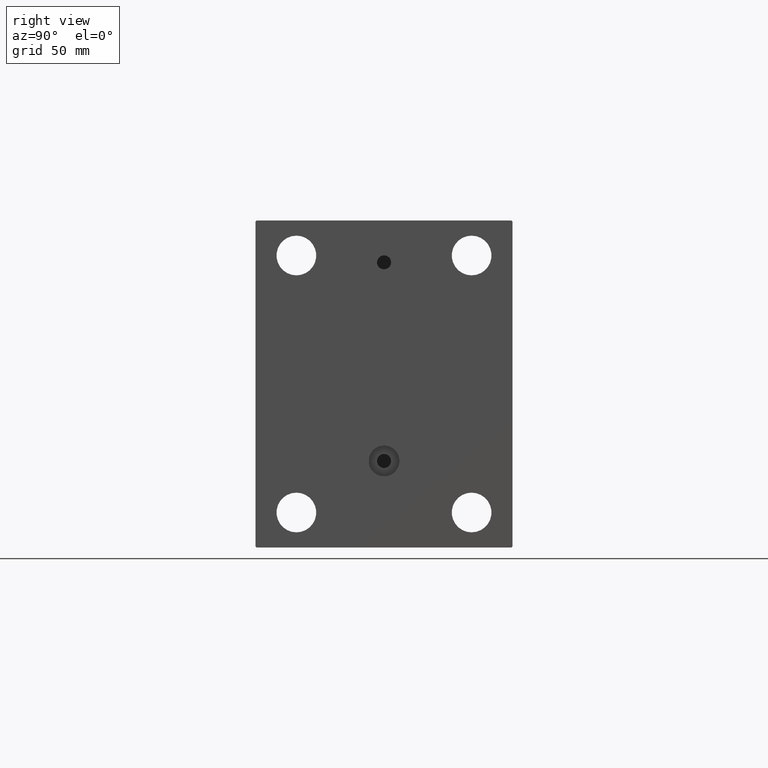
[diagram: clean part render]
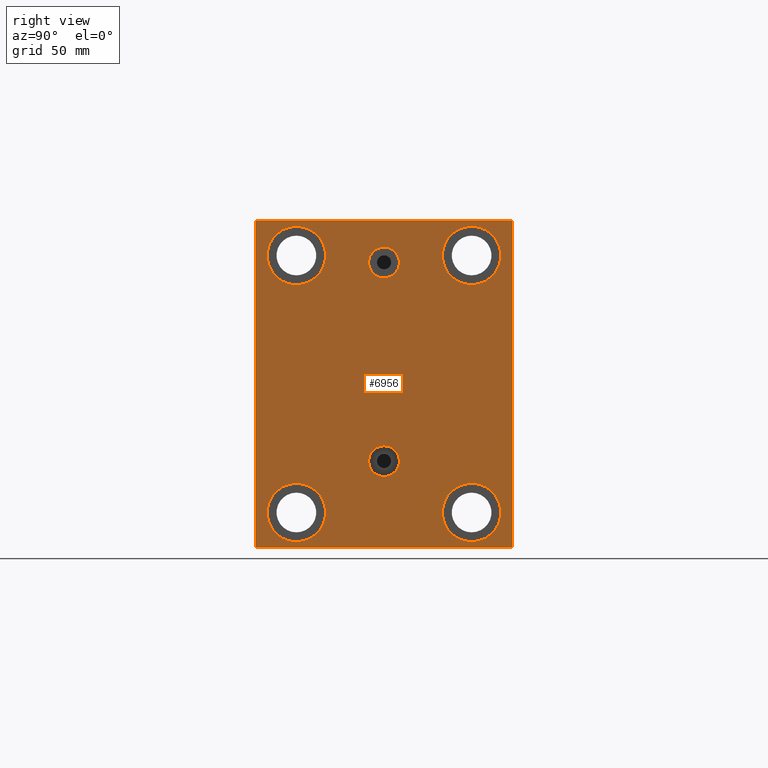
[diagram: same view with one face highlighted and labeled with its STEP entity id]
A machine part, right view. The second image highlights one B-rep face of the part: STEP entity #6956.
In plain terms, the highlighted planar face has unit normal (1, 0, 0).
Its self-contained STEP definition (entity closure, byte-faithful):
#545 = AXIS2_PLACEMENT_3D ( 'NONE', #3062, #14126, #35136 ) ;
#550 = EDGE_CURVE ( 'NONE', #5979, #14160, #40256, .T. ) ;
#575 = DIRECTION ( 'NONE',  ( 1.000000000000000000, 0.000000000000000000, -0.000000000000000000 ) ) ;
#583 = CIRCLE ( 'NONE', #545, 12.49999999999999645 ) ;
#736 = VERTEX_POINT ( 'NONE', #2929 ) ;
#903 = EDGE_CURVE ( 'NONE', #9303, #41866, #19307, .T. ) ;
#1451 = CIRCLE ( 'NONE', #33844, 12.49999999999999645 ) ;
#1667 = VECTOR ( 'NONE', #37918, 1000.000000000000000 ) ;
#2062 = EDGE_CURVE ( 'NONE', #40483, #42047, #39945, .T. ) ;
#2284 = ORIENTED_EDGE ( 'NONE', *, *, #44559, .F. ) ;
#2319 = CARTESIAN_POINT ( 'NONE',  ( 133.0000000000000000, -37.50000000000002132, -67.49999999999998579 ) ) ;
#2740 = AXIS2_PLACEMENT_3D ( 'NONE', #25566, #575, #18271 ) ;
#2771 = CARTESIAN_POINT ( 'NONE',  ( 133.0000000000000000, 54.99999999999999289, 69.49999999999997158 ) ) ;
#2916 = FACE_BOUND ( 'NONE', #40536, .T. ) ;
#2929 = CARTESIAN_POINT ( 'NONE',  ( 133.0000000000000000, -37.50000000000000711, 67.50000000000000000 ) ) ;
#3047 = VERTEX_POINT ( 'NONE', #43265 ) ;
#3062 = CARTESIAN_POINT ( 'NONE',  ( 133.0000000000000000, -37.50000000000002132, -54.99999999999999289 ) ) ;
#3151 = VERTEX_POINT ( 'NONE', #19167 ) ;
#3536 = DIRECTION ( 'NONE',  ( -1.000000000000000000, -0.000000000000000000, -0.000000000000000000 ) ) ;
#4415 = DIRECTION ( 'NONE',  ( 1.000000000000000000, 0.000000000000000000, -0.000000000000000000 ) ) ;
#4560 = VERTEX_POINT ( 'NONE', #42649 ) ;
#4620 = EDGE_LOOP ( 'NONE', ( #28916, #35952 ) ) ;
#5144 = EDGE_CURVE ( 'NONE', #34589, #18712, #583, .T. ) ;
#5153 = AXIS2_PLACEMENT_3D ( 'NONE', #10791, #29429, #25174 ) ;
#5413 = EDGE_CURVE ( 'NONE', #3151, #42880, #14136, .T. ) ;
#5695 = VERTEX_POINT ( 'NONE', #35022 ) ;
#5804 = ORIENTED_EDGE ( 'NONE', *, *, #37674, .T. ) ;
#5882 = ORIENTED_EDGE ( 'NONE', *, *, #14464, .T. ) ;
#5979 = VERTEX_POINT ( 'NONE', #34266 ) ;
#6048 = VERTEX_POINT ( 'NONE', #34962 ) ;
#6229 = CARTESIAN_POINT ( 'NONE',  ( 133.0000000000000000, -37.50000000000000711, 55.00000000000000711 ) ) ;
#6521 = EDGE_LOOP ( 'NONE', ( #34895, #29741, #26223, #38140, #37134, #30417, #29985, #24994 ) ) ;
#6649 = EDGE_CURVE ( 'NONE', #18712, #34589, #7400, .T. ) ;
#6956 = ADVANCED_FACE ( 'NONE', ( #2916, #34527, #20388, #45654, #20617, #31456, #30995 ), #9754, .T. ) ;
#7114 = CARTESIAN_POINT ( 'NONE',  ( 133.0000000000000000, -8.775864102628257178E-15, 52.00000000000000711 ) ) ;
#7400 = CIRCLE ( 'NONE', #5153, 12.49999999999999645 ) ;
#8091 = AXIS2_PLACEMENT_3D ( 'NONE', #25272, #28595, #35450 ) ;
#8829 = DIRECTION ( 'NONE',  ( 0.000000000000000000, 0.000000000000000000, 1.000000000000000000 ) ) ;
#9303 = VERTEX_POINT ( 'NONE', #17352 ) ;
#9754 = PLANE ( 'NONE',  #14172 ) ;
#10016 = LINE ( 'NONE', #18727, #29580 ) ;
#10759 = LINE ( 'NONE', #46203, #16747 ) ;
#10791 = CARTESIAN_POINT ( 'NONE',  ( 133.0000000000000000, -37.50000000000002132, -54.99999999999999289 ) ) ;
#11332 = ORIENTED_EDGE ( 'NONE', *, *, #5144, .T. ) ;
#11952 = CARTESIAN_POINT ( 'NONE',  ( 133.0000000000000000, -54.50000000000000711, -70.00000000000002842 ) ) ;
#11964 = ORIENTED_EDGE ( 'NONE', *, *, #45645, .T. ) ;
#12132 = CARTESIAN_POINT ( 'NONE',  ( 133.0000000000000000, 37.50000000000000711, 55.00000000000000711 ) ) ;
#12643 = CIRCLE ( 'NONE', #30718, 12.49999999999999645 ) ;
#13078 = ORIENTED_EDGE ( 'NONE', *, *, #17679, .F. ) ;
#13563 = VERTEX_POINT ( 'NONE', #19545 ) ;
#13673 = DIRECTION ( 'NONE',  ( 0.000000000000000000, -1.000000000000000000, -1.261617073437677999E-16 ) ) ;
#14126 = DIRECTION ( 'NONE',  ( -1.000000000000000000, -0.000000000000000000, -0.000000000000000000 ) ) ;
#14136 = CIRCLE ( 'NONE', #41320, 12.49999999999999645 ) ;
#14155 = CARTESIAN_POINT ( 'NONE',  ( 133.0000000000000000, -37.50000000000000711, 55.00000000000000711 ) ) ;
#14160 = VERTEX_POINT ( 'NONE', #32044 ) ;
#14161 = DIRECTION ( 'NONE',  ( -1.000000000000000000, -0.000000000000000000, -0.000000000000000000 ) ) ;
#14172 = AXIS2_PLACEMENT_3D ( 'NONE', #46364, #24144, #41646 ) ;
#14464 = EDGE_CURVE ( 'NONE', #30354, #736, #43556, .T. ) ;
#14578 = AXIS2_PLACEMENT_3D ( 'NONE', #18637, #14161, #15099 ) ;
#14693 = EDGE_CURVE ( 'NONE', #38950, #6048, #12643, .T. ) ;
#15099 = DIRECTION ( 'NONE',  ( 0.000000000000000000, 0.000000000000000000, 1.000000000000000000 ) ) ;
#15654 = DIRECTION ( 'NONE',  ( 0.000000000000000000, -0.7071067811865474617, -0.7071067811865474617 ) ) ;
#16225 = CARTESIAN_POINT ( 'NONE',  ( 133.0000000000000000, -55.00000000000000711, -70.00000000000002842 ) ) ;
#16657 = CARTESIAN_POINT ( 'NONE',  ( 133.0000000000000000, -62.25000000000078160, -62.24999999999904787 ) ) ;
#16747 = VECTOR ( 'NONE', #35550, 1000.000000000000000 ) ;
#16752 = EDGE_LOOP ( 'NONE', ( #11332, #42637 ) ) ;
#17087 = EDGE_CURVE ( 'NONE', #19870, #4560, #40884, .T. ) ;
#17352 = CARTESIAN_POINT ( 'NONE',  ( 133.0000000000000000, 4.041334437186266200E-15, -39.58000000000000540 ) ) ;
#17398 = DIRECTION ( 'NONE',  ( -1.000000000000000000, -0.000000000000000000, -0.000000000000000000 ) ) ;
#17679 = EDGE_CURVE ( 'NONE', #41866, #9303, #45922, .T. ) ;
#17934 = DIRECTION ( 'NONE',  ( 0.000000000000000000, 0.000000000000000000, 1.000000000000000000 ) ) ;
#18271 = DIRECTION ( 'NONE',  ( 0.000000000000000000, 0.000000000000000000, 1.000000000000000000 ) ) ;
#18637 = CARTESIAN_POINT ( 'NONE',  ( 133.0000000000000000, 37.49999999999997868, -54.99999999999999289 ) ) ;
#18712 = VERTEX_POINT ( 'NONE', #19516 ) ;
#18727 = CARTESIAN_POINT ( 'NONE',  ( 133.0000000000000000, -62.25000000000000711, 62.25000000000000711 ) ) ;
#19167 = CARTESIAN_POINT ( 'NONE',  ( 133.0000000000000000, 37.50000000000000711, 67.50000000000000000 ) ) ;
#19307 = CIRCLE ( 'NONE', #2740, 6.580000000000002736 ) ;
#19516 = CARTESIAN_POINT ( 'NONE',  ( 133.0000000000000000, -37.50000000000002132, -42.49999999999999289 ) ) ;
#19545 = CARTESIAN_POINT ( 'NONE',  ( 133.0000000000000000, -7.970046508789298136E-15, 58.58000000000000540 ) ) ;
#19870 = VERTEX_POINT ( 'NONE', #2771 ) ;
#20252 = EDGE_LOOP ( 'NONE', ( #5804, #40223 ) ) ;
#20388 = FACE_BOUND ( 'NONE', #20252, .T. ) ;
#20566 = DIRECTION ( 'NONE',  ( 0.000000000000000000, 0.000000000000000000, 1.000000000000000000 ) ) ;
#20584 = AXIS2_PLACEMENT_3D ( 'NONE', #7114, #21513, #39687 ) ;
#20617 = FACE_BOUND ( 'NONE', #4620, .T. ) ;
#21176 = CARTESIAN_POINT ( 'NONE',  ( 133.0000000000000000, 37.50000000000000711, 55.00000000000000711 ) ) ;
#21268 = DIRECTION ( 'NONE',  ( -1.000000000000000000, -0.000000000000000000, -0.000000000000000000 ) ) ;
#21513 = DIRECTION ( 'NONE',  ( 1.000000000000000000, 0.000000000000000000, 0.000000000000000000 ) ) ;
#21764 = DIRECTION ( 'NONE',  ( 0.000000000000000000, 0.000000000000000000, -1.000000000000000000 ) ) ;
#23106 = VECTOR ( 'NONE', #21764, 1000.000000000000000 ) ;
#23576 = EDGE_LOOP ( 'NONE', ( #28354, #13078 ) ) ;
#23862 = EDGE_CURVE ( 'NONE', #4560, #3047, #34437, .T. ) ;
#23887 = CARTESIAN_POINT ( 'NONE',  ( 133.0000000000000000, -55.00000000000000711, 69.50000000000001421 ) ) ;
#24087 = VECTOR ( 'NONE', #13673, 1000.000000000000000 ) ;
#24144 = DIRECTION ( 'NONE',  ( 1.000000000000000000, 0.000000000000000000, 0.000000000000000000 ) ) ;
#24994 = ORIENTED_EDGE ( 'NONE', *, *, #17087, .T. ) ;
#25174 = DIRECTION ( 'NONE',  ( 0.000000000000000000, 0.000000000000000000, 1.000000000000000000 ) ) ;
#25272 = CARTESIAN_POINT ( 'NONE',  ( 133.0000000000000000, -8.775864102628257178E-15, 52.00000000000000711 ) ) ;
#25566 = CARTESIAN_POINT ( 'NONE',  ( 133.0000000000000000, 4.041334437186266200E-15, -33.00000000000000000 ) ) ;
#26063 = VECTOR ( 'NONE', #26065, 1000.000000000000000 ) ;
#26065 = DIRECTION ( 'NONE',  ( -0.000000000000000000, 0.7071067811865279218, 0.7071067811865671127 ) ) ;
#26223 = ORIENTED_EDGE ( 'NONE', *, *, #2062, .T. ) ;
#26343 = CARTESIAN_POINT ( 'NONE',  ( 133.0000000000000000, 4.041334437186266200E-15, -33.00000000000000000 ) ) ;
#26915 = DIRECTION ( 'NONE',  ( -0.000000000000000000, -0.7071067811865474617, 0.7071067811865474617 ) ) ;
#27037 = CIRCLE ( 'NONE', #44422, 12.49999999999999645 ) ;
#27405 = CIRCLE ( 'NONE', #14578, 12.49999999999999645 ) ;
#28354 = ORIENTED_EDGE ( 'NONE', *, *, #903, .F. ) ;
#28595 = DIRECTION ( 'NONE',  ( 1.000000000000000000, 0.000000000000000000, 0.000000000000000000 ) ) ;
#28916 = ORIENTED_EDGE ( 'NONE', *, *, #45290, .T. ) ;
#28950 = EDGE_CURVE ( 'NONE', #42076, #5979, #34140, .T. ) ;
#29034 = EDGE_CURVE ( 'NONE', #14160, #19870, #10759, .T. ) ;
#29106 = CARTESIAN_POINT ( 'NONE',  ( 133.0000000000000000, -37.50000000000000711, 42.50000000000000711 ) ) ;
#29178 = CARTESIAN_POINT ( 'NONE',  ( 133.0000000000000000, -55.00000000000000711, -69.50000000000001421 ) ) ;
#29429 = DIRECTION ( 'NONE',  ( -1.000000000000000000, -0.000000000000000000, -0.000000000000000000 ) ) ;
#29580 = VECTOR ( 'NONE', #15654, 1000.000000000000114 ) ;
#29741 = ORIENTED_EDGE ( 'NONE', *, *, #30339, .T. ) ;
#29985 = ORIENTED_EDGE ( 'NONE', *, *, #29034, .T. ) ;
#30339 = EDGE_CURVE ( 'NONE', #3047, #40483, #10016, .T. ) ;
#30354 = VERTEX_POINT ( 'NONE', #29106 ) ;
#30417 = ORIENTED_EDGE ( 'NONE', *, *, #550, .T. ) ;
#30434 = CARTESIAN_POINT ( 'NONE',  ( 133.0000000000000000, 37.49999999999997868, -42.49999999999999289 ) ) ;
#30456 = CARTESIAN_POINT ( 'NONE',  ( 133.0000000000000000, 62.24999999999997868, 62.24999999999997868 ) ) ;
#30691 = CIRCLE ( 'NONE', #8091, 6.580000000000002736 ) ;
#30718 = AXIS2_PLACEMENT_3D ( 'NONE', #38957, #21268, #20566 ) ;
#30995 = FACE_OUTER_BOUND ( 'NONE', #6521, .T. ) ;
#31456 = FACE_BOUND ( 'NONE', #16752, .T. ) ;
#31987 = EDGE_CURVE ( 'NONE', #5695, #13563, #34889, .T. ) ;
#32044 = CARTESIAN_POINT ( 'NONE',  ( 133.0000000000000000, 55.00000000000002132, -69.50000000000000000 ) ) ;
#32210 = AXIS2_PLACEMENT_3D ( 'NONE', #6229, #34075, #8829 ) ;
#33089 = AXIS2_PLACEMENT_3D ( 'NONE', #26343, #4415, #40779 ) ;
#33600 = DIRECTION ( 'NONE',  ( 0.000000000000000000, 0.000000000000000000, 1.000000000000000000 ) ) ;
#33844 = AXIS2_PLACEMENT_3D ( 'NONE', #14155, #3536, #17934 ) ;
#34075 = DIRECTION ( 'NONE',  ( -1.000000000000000000, -0.000000000000000000, -0.000000000000000000 ) ) ;
#34140 = LINE ( 'NONE', #16225, #1667 ) ;
#34266 = CARTESIAN_POINT ( 'NONE',  ( 133.0000000000000000, 54.50000000000004974, -70.00000000000000000 ) ) ;
#34437 = LINE ( 'NONE', #42253, #24087 ) ;
#34527 = FACE_BOUND ( 'NONE', #23576, .T. ) ;
#34589 = VERTEX_POINT ( 'NONE', #2319 ) ;
#34767 = EDGE_CURVE ( 'NONE', #42047, #42076, #42149, .T. ) ;
#34889 = CIRCLE ( 'NONE', #20584, 6.580000000000002736 ) ;
#34895 = ORIENTED_EDGE ( 'NONE', *, *, #23862, .T. ) ;
#34962 = CARTESIAN_POINT ( 'NONE',  ( 133.0000000000000000, 37.49999999999997868, -67.49999999999998579 ) ) ;
#35022 = CARTESIAN_POINT ( 'NONE',  ( 133.0000000000000000, -8.775864102628257178E-15, 45.42000000000000171 ) ) ;
#35136 = DIRECTION ( 'NONE',  ( 0.000000000000000000, 0.000000000000000000, 1.000000000000000000 ) ) ;
#35298 = EDGE_LOOP ( 'NONE', ( #5882, #11964 ) ) ;
#35450 = DIRECTION ( 'NONE',  ( 0.000000000000000000, 0.000000000000000000, -1.000000000000000000 ) ) ;
#35550 = DIRECTION ( 'NONE',  ( 0.000000000000000000, -1.982541115402065110E-16, 1.000000000000000000 ) ) ;
#35914 = CARTESIAN_POINT ( 'NONE',  ( 133.0000000000000000, -55.00000000000000711, 69.99999999999998579 ) ) ;
#35952 = ORIENTED_EDGE ( 'NONE', *, *, #5413, .T. ) ;
#37134 = ORIENTED_EDGE ( 'NONE', *, *, #28950, .T. ) ;
#37674 = EDGE_CURVE ( 'NONE', #6048, #38950, #27405, .T. ) ;
#37918 = DIRECTION ( 'NONE',  ( 0.000000000000000000, 1.000000000000000000, 2.523234146875355012E-16 ) ) ;
#38140 = ORIENTED_EDGE ( 'NONE', *, *, #34767, .T. ) ;
#38825 = DIRECTION ( 'NONE',  ( -0.000000000000000000, 0.7071067811865376918, -0.7071067811865574537 ) ) ;
#38948 = CARTESIAN_POINT ( 'NONE',  ( 133.0000000000000000, 37.50000000000000711, 42.50000000000000711 ) ) ;
#38950 = VERTEX_POINT ( 'NONE', #30434 ) ;
#38957 = CARTESIAN_POINT ( 'NONE',  ( 133.0000000000000000, 37.49999999999997868, -54.99999999999999289 ) ) ;
#39687 = DIRECTION ( 'NONE',  ( 0.000000000000000000, 0.000000000000000000, -1.000000000000000000 ) ) ;
#39945 = LINE ( 'NONE', #35914, #23106 ) ;
#40223 = ORIENTED_EDGE ( 'NONE', *, *, #14693, .T. ) ;
#40256 = LINE ( 'NONE', #44271, #26063 ) ;
#40483 = VERTEX_POINT ( 'NONE', #23887 ) ;
#40536 = EDGE_LOOP ( 'NONE', ( #44396, #2284 ) ) ;
#40779 = DIRECTION ( 'NONE',  ( 0.000000000000000000, 0.000000000000000000, 1.000000000000000000 ) ) ;
#40884 = LINE ( 'NONE', #30456, #43625 ) ;
#41320 = AXIS2_PLACEMENT_3D ( 'NONE', #21176, #17398, #45734 ) ;
#41405 = DIRECTION ( 'NONE',  ( -1.000000000000000000, -0.000000000000000000, -0.000000000000000000 ) ) ;
#41646 = DIRECTION ( 'NONE',  ( 0.000000000000000000, 0.000000000000000000, -1.000000000000000000 ) ) ;
#41866 = VERTEX_POINT ( 'NONE', #44890 ) ;
#42047 = VERTEX_POINT ( 'NONE', #29178 ) ;
#42076 = VERTEX_POINT ( 'NONE', #11952 ) ;
#42149 = LINE ( 'NONE', #16657, #44027 ) ;
#42253 = CARTESIAN_POINT ( 'NONE',  ( 133.0000000000000000, 54.99999999999999289, 70.00000000000000000 ) ) ;
#42637 = ORIENTED_EDGE ( 'NONE', *, *, #6649, .T. ) ;
#42649 = CARTESIAN_POINT ( 'NONE',  ( 133.0000000000000000, 54.49999999999996447, 70.00000000000000000 ) ) ;
#42880 = VERTEX_POINT ( 'NONE', #38948 ) ;
#43265 = CARTESIAN_POINT ( 'NONE',  ( 133.0000000000000000, -54.50000000000003553, 69.99999999999998579 ) ) ;
#43556 = CIRCLE ( 'NONE', #32210, 12.49999999999999645 ) ;
#43625 = VECTOR ( 'NONE', #26915, 1000.000000000000114 ) ;
#44027 = VECTOR ( 'NONE', #38825, 999.9999999999998863 ) ;
#44271 = CARTESIAN_POINT ( 'NONE',  ( 133.0000000000000000, 62.25000000000153477, -62.24999999999808153 ) ) ;
#44396 = ORIENTED_EDGE ( 'NONE', *, *, #31987, .F. ) ;
#44422 = AXIS2_PLACEMENT_3D ( 'NONE', #12132, #41405, #33600 ) ;
#44559 = EDGE_CURVE ( 'NONE', #13563, #5695, #30691, .T. ) ;
#44890 = CARTESIAN_POINT ( 'NONE',  ( 133.0000000000000000, 4.847152031025224453E-15, -26.41999999999999815 ) ) ;
#45290 = EDGE_CURVE ( 'NONE', #42880, #3151, #27037, .T. ) ;
#45645 = EDGE_CURVE ( 'NONE', #736, #30354, #1451, .T. ) ;
#45654 = FACE_BOUND ( 'NONE', #35298, .T. ) ;
#45734 = DIRECTION ( 'NONE',  ( 0.000000000000000000, 0.000000000000000000, 1.000000000000000000 ) ) ;
#45922 = CIRCLE ( 'NONE', #33089, 6.580000000000002736 ) ;
#46203 = CARTESIAN_POINT ( 'NONE',  ( 133.0000000000000000, 55.00000000000002132, -70.00000000000000000 ) ) ;
#46364 = CARTESIAN_POINT ( 'NONE',  ( 133.0000000000000000, 0.000000000000000000, 0.000000000000000000 ) ) ;